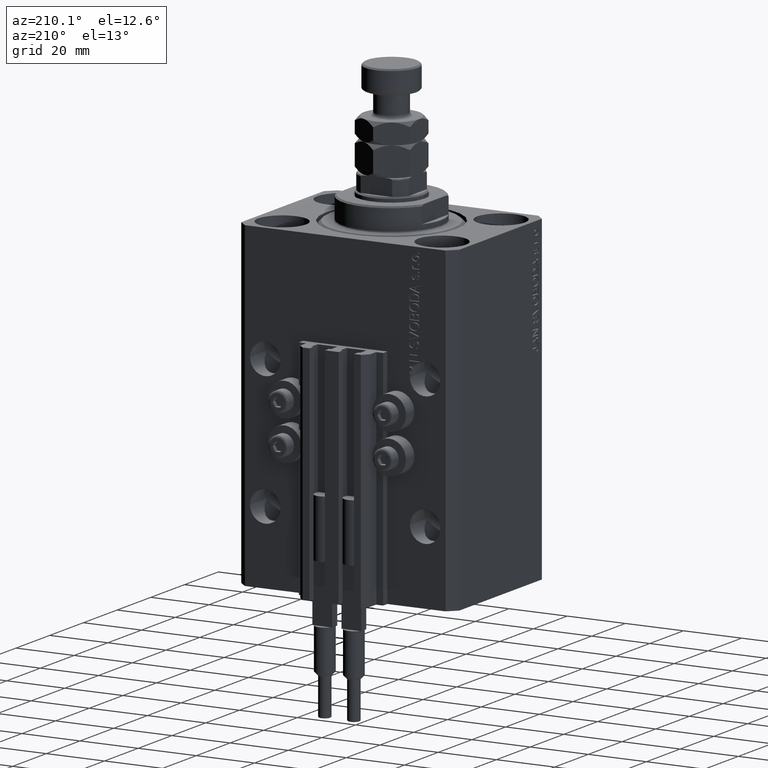
[diagram: clean part render]
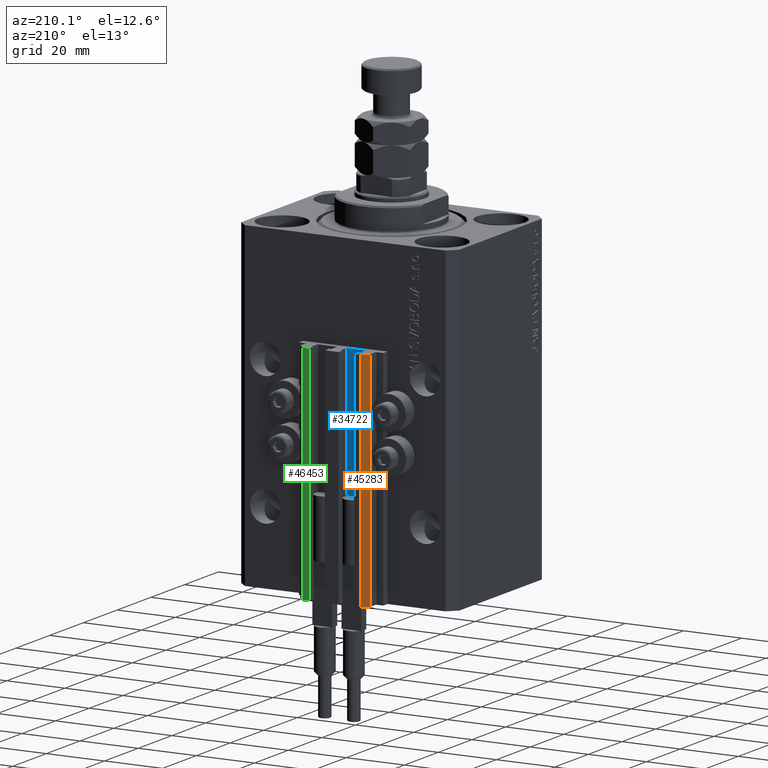
[diagram: same view with three faces highlighted in distinct colors, each labeled with its STEP entity id]
A machine part, auxiliary view with three faces highlighted in distinct colors.
Their STEP definitions:

[orange] entity #45283 — the highlighted planar face has unit normal (-0.7071, 0.7071, 0).
#600 = CARTESIAN_POINT ( 'NONE',  ( -10.00000000000000000, 35.50000000000000000, -110.0000000000000000 ) ) ;
#3352 = AXIS2_PLACEMENT_3D ( 'NONE', #35003, #31215, #31723 ) ;
#9298 = LINE ( 'NONE', #9793, #22694 ) ;
#9606 = VERTEX_POINT ( 'NONE', #600 ) ;
#9793 = CARTESIAN_POINT ( 'NONE',  ( -12.00000000000000000, 33.49999999999998579, -110.0000000000000000 ) ) ;
#10487 = ORIENTED_EDGE ( 'NONE', *, *, #36624, .F. ) ;
#12080 = VERTEX_POINT ( 'NONE', #35434 ) ;
#13816 = DIRECTION ( 'NONE',  ( -0.7071067811865460184, -0.7071067811865490160, 0.000000000000000000 ) ) ;
#13852 = EDGE_CURVE ( 'NONE', #12080, #24521, #9298, .T. ) ;
#15953 = ORIENTED_EDGE ( 'NONE', *, *, #13852, .T. ) ;
#19441 = EDGE_CURVE ( 'NONE', #42718, #24521, #44831, .T. ) ;
#22694 = VECTOR ( 'NONE', #27259, 1000.000000000000000 ) ;
#22966 = CARTESIAN_POINT ( 'NONE',  ( -10.00000000000000000, 35.50000000000000000, -110.0000000000000000 ) ) ;
#24521 = VERTEX_POINT ( 'NONE', #46289 ) ;
#24681 = ORIENTED_EDGE ( 'NONE', *, *, #46191, .T. ) ;
#25668 = ORIENTED_EDGE ( 'NONE', *, *, #19441, .F. ) ;
#25845 = EDGE_LOOP ( 'NONE', ( #25668, #10487, #24681, #15953 ) ) ;
#27259 = DIRECTION ( 'NONE',  ( 0.000000000000000000, 0.000000000000000000, 1.000000000000000000 ) ) ;
#29327 = VECTOR ( 'NONE', #37765, 1000.000000000000227 ) ;
#31215 = DIRECTION ( 'NONE',  ( -0.7071067811865490160, 0.7071067811865461294, 0.000000000000000000 ) ) ;
#31723 = DIRECTION ( 'NONE',  ( -0.7071067811865460184, -0.7071067811865489050, 0.000000000000000000 ) ) ;
#32712 = CARTESIAN_POINT ( 'NONE',  ( -10.00000000000000000, 35.50000000000000000, -110.0000000000000000 ) ) ;
#34645 = VECTOR ( 'NONE', #13816, 1000.000000000000227 ) ;
#35003 = CARTESIAN_POINT ( 'NONE',  ( -10.00000000000000000, 35.50000000000000000, -110.0000000000000000 ) ) ;
#35255 = PLANE ( 'NONE',  #3352 ) ;
#35434 = CARTESIAN_POINT ( 'NONE',  ( -12.00000000000000000, 33.49999999999998579, -110.0000000000000000 ) ) ;
#36408 = CARTESIAN_POINT ( 'NONE',  ( -10.00000000000000000, 35.50000000000000000, -33.00000000000000000 ) ) ;
#36624 = EDGE_CURVE ( 'NONE', #9606, #42718, #37368, .T. ) ;
#36857 = VECTOR ( 'NONE', #46180, 1000.000000000000000 ) ;
#37368 = LINE ( 'NONE', #22966, #36857 ) ;
#37765 = DIRECTION ( 'NONE',  ( -0.7071067811865460184, -0.7071067811865490160, 0.000000000000000000 ) ) ;
#41554 = CARTESIAN_POINT ( 'NONE',  ( -10.00000000000000000, 35.50000000000000000, -33.00000000000000000 ) ) ;
#42718 = VERTEX_POINT ( 'NONE', #36408 ) ;
#42836 = FACE_OUTER_BOUND ( 'NONE', #25845, .T. ) ;
#44811 = LINE ( 'NONE', #32712, #34645 ) ;
#44831 = LINE ( 'NONE', #41554, #29327 ) ;
#45283 = ADVANCED_FACE ( 'NONE', ( #42836 ), #35255, .T. ) ;
#46180 = DIRECTION ( 'NONE',  ( 0.000000000000000000, 0.000000000000000000, 1.000000000000000000 ) ) ;
#46191 = EDGE_CURVE ( 'NONE', #9606, #12080, #44811, .T. ) ;
#46289 = CARTESIAN_POINT ( 'NONE',  ( -12.00000000000000000, 33.49999999999998579, -33.00000000000000000 ) ) ;

[blue] entity #34722 — the highlighted planar face has unit normal (0, 1, 0).
#213 = LINE ( 'NONE', #12301, #24762 ) ;
#2706 = EDGE_CURVE ( 'NONE', #33482, #48906, #38535, .T. ) ;
#4624 = FACE_OUTER_BOUND ( 'NONE', #38164, .T. ) ;
#4732 = VECTOR ( 'NONE', #39037, 1000.000000000000000 ) ;
#8164 = DIRECTION ( 'NONE',  ( 0.000000000000000000, 1.000000000000000000, -0.000000000000000000 ) ) ;
#8467 = CARTESIAN_POINT ( 'NONE',  ( -1.800000000000000933, 29.50000000000000355, -110.0000000000000000 ) ) ;
#11256 = LINE ( 'NONE', #42267, #12173 ) ;
#12173 = VECTOR ( 'NONE', #34194, 1000.000000000000000 ) ;
#12301 = CARTESIAN_POINT ( 'NONE',  ( -1.800000000000000933, 29.50000000000000355, -110.0000000000000000 ) ) ;
#12671 = DIRECTION ( 'NONE',  ( 0.000000000000000000, 0.000000000000000000, 1.000000000000000000 ) ) ;
#13166 = CARTESIAN_POINT ( 'NONE',  ( -8.199999999999997513, 29.50000000000000355, -33.00000000000000000 ) ) ;
#16108 = VERTEX_POINT ( 'NONE', #18914 ) ;
#16750 = EDGE_CURVE ( 'NONE', #48906, #43165, #31826, .T. ) ;
#18914 = CARTESIAN_POINT ( 'NONE',  ( -1.800000000000000933, 29.50000000000000355, -33.00000000000000000 ) ) ;
#19228 = DIRECTION ( 'NONE',  ( 0.000000000000000000, 0.000000000000000000, 1.000000000000000000 ) ) ;
#20085 = CARTESIAN_POINT ( 'NONE',  ( -1.800000000000000933, 29.50000000000000355, -110.0000000000000000 ) ) ;
#23408 = ORIENTED_EDGE ( 'NONE', *, *, #2706, .T. ) ;
#24052 = ORIENTED_EDGE ( 'NONE', *, *, #16750, .T. ) ;
#24762 = VECTOR ( 'NONE', #45848, 1000.000000000000000 ) ;
#27465 = ORIENTED_EDGE ( 'NONE', *, *, #32914, .F. ) ;
#30842 = CARTESIAN_POINT ( 'NONE',  ( -1.800000000000000933, 29.50000000000000355, -110.0000000000000000 ) ) ;
#30875 = VECTOR ( 'NONE', #12671, 1000.000000000000000 ) ;
#31826 = LINE ( 'NONE', #47214, #30875 ) ;
#32914 = EDGE_CURVE ( 'NONE', #33482, #16108, #213, .T. ) ;
#33482 = VERTEX_POINT ( 'NONE', #8467 ) ;
#34194 = DIRECTION ( 'NONE',  ( -1.000000000000000000, 0.000000000000000000, 0.000000000000000000 ) ) ;
#34722 = ADVANCED_FACE ( 'NONE', ( #4624 ), #43434, .T. ) ;
#38164 = EDGE_LOOP ( 'NONE', ( #47972, #27465, #23408, #24052 ) ) ;
#38535 = LINE ( 'NONE', #20085, #4732 ) ;
#39037 = DIRECTION ( 'NONE',  ( -1.000000000000000000, 0.000000000000000000, 0.000000000000000000 ) ) ;
#42267 = CARTESIAN_POINT ( 'NONE',  ( -1.800000000000000933, 29.50000000000000355, -33.00000000000000000 ) ) ;
#43165 = VERTEX_POINT ( 'NONE', #13166 ) ;
#43434 = PLANE ( 'NONE',  #49677 ) ;
#44489 = EDGE_CURVE ( 'NONE', #16108, #43165, #11256, .T. ) ;
#45848 = DIRECTION ( 'NONE',  ( 0.000000000000000000, 0.000000000000000000, 1.000000000000000000 ) ) ;
#47214 = CARTESIAN_POINT ( 'NONE',  ( -8.199999999999997513, 29.50000000000000355, -110.0000000000000000 ) ) ;
#47972 = ORIENTED_EDGE ( 'NONE', *, *, #44489, .F. ) ;
#48603 = CARTESIAN_POINT ( 'NONE',  ( -8.199999999999997513, 29.50000000000000355, -110.0000000000000000 ) ) ;
#48906 = VERTEX_POINT ( 'NONE', #48603 ) ;
#49677 = AXIS2_PLACEMENT_3D ( 'NONE', #30842, #8164, #19228 ) ;

[green] entity #46453 — the highlighted planar face has unit normal (0, 1, 0).
#1828 = VERTEX_POINT ( 'NONE', #8510 ) ;
#3652 = DIRECTION ( 'NONE',  ( -1.000000000000000000, 0.000000000000000000, 0.000000000000000000 ) ) ;
#4153 = CARTESIAN_POINT ( 'NONE',  ( 9.999999999999998224, 35.50000000000001421, -33.00000000000000000 ) ) ;
#4673 = VERTEX_POINT ( 'NONE', #25348 ) ;
#5415 = ORIENTED_EDGE ( 'NONE', *, *, #11517, .F. ) ;
#5914 = CARTESIAN_POINT ( 'NONE',  ( 9.999999999999998224, 35.50000000000001421, -110.0000000000000000 ) ) ;
#7170 = ORIENTED_EDGE ( 'NONE', *, *, #31135, .F. ) ;
#8510 = CARTESIAN_POINT ( 'NONE',  ( 7.649999999999998579, 35.50000000000001421, -33.00000000000000000 ) ) ;
#8980 = DIRECTION ( 'NONE',  ( 0.000000000000000000, 1.000000000000000000, -0.000000000000000000 ) ) ;
#10447 = VECTOR ( 'NONE', #31775, 1000.000000000000000 ) ;
#11517 = EDGE_CURVE ( 'NONE', #34120, #4673, #16791, .T. ) ;
#13874 = EDGE_CURVE ( 'NONE', #34120, #31767, #40564, .T. ) ;
#16791 = LINE ( 'NONE', #21544, #25802 ) ;
#17294 = DIRECTION ( 'NONE',  ( 0.000000000000000000, 0.000000000000000000, 1.000000000000000000 ) ) ;
#20539 = CARTESIAN_POINT ( 'NONE',  ( 9.999999999999998224, 35.50000000000001421, -110.0000000000000000 ) ) ;
#20895 = LINE ( 'NONE', #28481, #10447 ) ;
#21544 = CARTESIAN_POINT ( 'NONE',  ( 9.999999999999998224, 35.50000000000001421, -110.0000000000000000 ) ) ;
#21629 = CARTESIAN_POINT ( 'NONE',  ( 7.649999999999998579, 35.50000000000001421, -110.0000000000000000 ) ) ;
#23720 = ORIENTED_EDGE ( 'NONE', *, *, #40737, .T. ) ;
#25348 = CARTESIAN_POINT ( 'NONE',  ( 9.999999999999998224, 35.50000000000001421, -33.00000000000000000 ) ) ;
#25802 = VECTOR ( 'NONE', #17294, 1000.000000000000000 ) ;
#26551 = EDGE_LOOP ( 'NONE', ( #7170, #5415, #39220, #23720 ) ) ;
#28318 = VECTOR ( 'NONE', #36252, 1000.000000000000000 ) ;
#28481 = CARTESIAN_POINT ( 'NONE',  ( 7.649999999999998579, 35.50000000000001421, -110.0000000000000000 ) ) ;
#31135 = EDGE_CURVE ( 'NONE', #4673, #1828, #34642, .T. ) ;
#31767 = VERTEX_POINT ( 'NONE', #21629 ) ;
#31775 = DIRECTION ( 'NONE',  ( 0.000000000000000000, 0.000000000000000000, 1.000000000000000000 ) ) ;
#34120 = VERTEX_POINT ( 'NONE', #5914 ) ;
#34642 = LINE ( 'NONE', #4153, #46427 ) ;
#34833 = CARTESIAN_POINT ( 'NONE',  ( 9.999999999999998224, 35.50000000000001421, -110.0000000000000000 ) ) ;
#36252 = DIRECTION ( 'NONE',  ( -1.000000000000000000, 0.000000000000000000, 0.000000000000000000 ) ) ;
#36262 = AXIS2_PLACEMENT_3D ( 'NONE', #20539, #8980, #47543 ) ;
#39220 = ORIENTED_EDGE ( 'NONE', *, *, #13874, .T. ) ;
#40564 = LINE ( 'NONE', #34833, #28318 ) ;
#40737 = EDGE_CURVE ( 'NONE', #31767, #1828, #20895, .T. ) ;
#44512 = PLANE ( 'NONE',  #36262 ) ;
#46427 = VECTOR ( 'NONE', #3652, 1000.000000000000000 ) ;
#46453 = ADVANCED_FACE ( 'NONE', ( #48048 ), #44512, .T. ) ;
#47543 = DIRECTION ( 'NONE',  ( 0.000000000000000000, 0.000000000000000000, 1.000000000000000000 ) ) ;
#48048 = FACE_OUTER_BOUND ( 'NONE', #26551, .T. ) ;